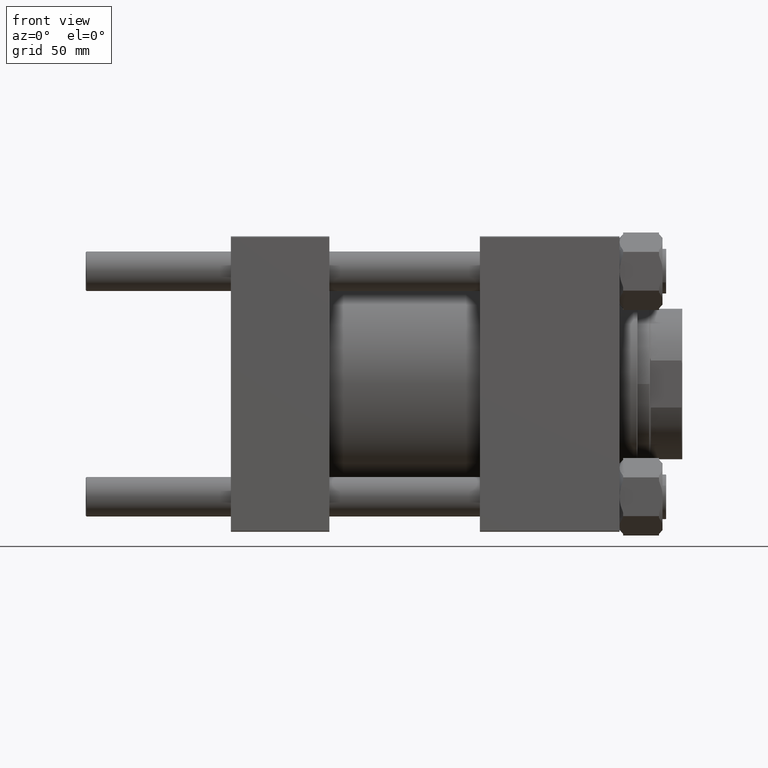
[diagram: clean part render]
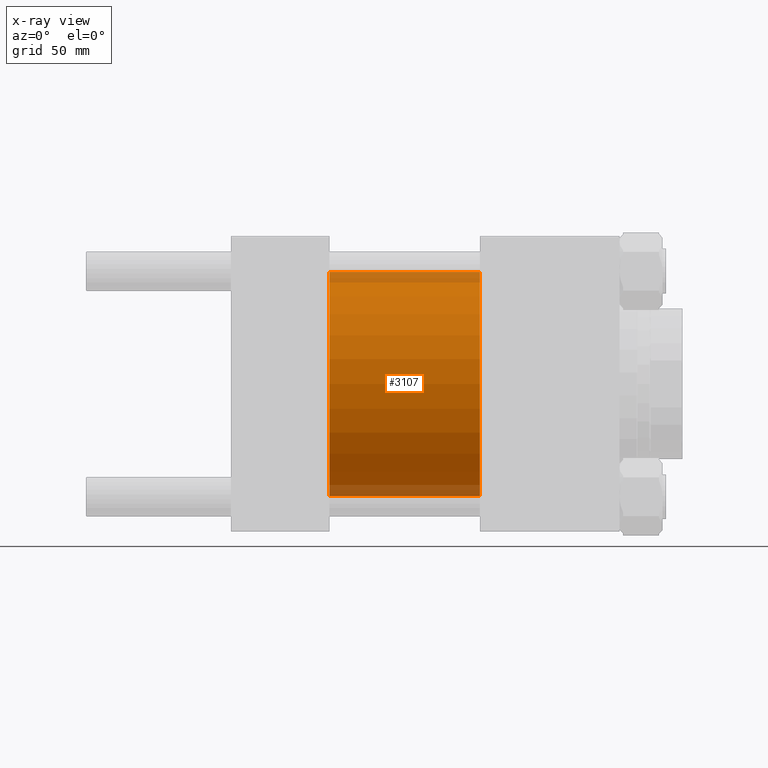
[diagram: x-ray — body ghosted, one internal face saturated and labeled with its STEP entity id]
A machine part, front view, then the same camera in x-ray: the body is ghosted and one INTERNAL B-rep face — a face not visible from any outside direction — is saturated and labeled: STEP entity #3107.
In plain terms, the highlighted cylindrical surface (partial cylindrical patch) has radius 62.5 mm, axis along (-1, -0, -0).
Its self-contained STEP definition (entity closure, byte-faithful):
#3107 = ADVANCED_FACE ( 'NONE', ( #16493 ), #20059, .F. ) ;
#3879 = DIRECTION ( 'NONE',  ( -1.000000000000000000, -0.000000000000000000, -0.000000000000000000 ) ) ;
#3918 = CIRCLE ( 'NONE', #21005, 62.50000000000000000 ) ;
#4283 = ORIENTED_EDGE ( 'NONE', *, *, #28866, .F. ) ;
#5727 = VERTEX_POINT ( 'NONE', #49625 ) ;
#10718 = VERTEX_POINT ( 'NONE', #12510 ) ;
#11118 = DIRECTION ( 'NONE',  ( 1.000000000000000000, 0.000000000000000000, 0.000000000000000000 ) ) ;
#11263 = LINE ( 'NONE', #19396, #41340 ) ;
#12510 = CARTESIAN_POINT ( 'NONE',  ( 55.00000000000000000, 7.654042494670956226E-15, -62.50000000000000000 ) ) ;
#15906 = ORIENTED_EDGE ( 'NONE', *, *, #33330, .F. ) ;
#16493 = FACE_OUTER_BOUND ( 'NONE', #49110, .T. ) ;
#18102 = AXIS2_PLACEMENT_3D ( 'NONE', #48941, #33445, #24129 ) ;
#18919 = DIRECTION ( 'NONE',  ( 1.000000000000000000, 0.000000000000000000, 0.000000000000000000 ) ) ;
#19396 = CARTESIAN_POINT ( 'NONE',  ( 139.0000000000000000, 7.654042494670956226E-15, -62.50000000000000000 ) ) ;
#19400 = CARTESIAN_POINT ( 'NONE',  ( 139.0000000000000000, 0.000000000000000000, 62.50000000000000000 ) ) ;
#19498 = DIRECTION ( 'NONE',  ( 0.000000000000000000, 0.000000000000000000, -1.000000000000000000 ) ) ;
#20059 = CYLINDRICAL_SURFACE ( 'NONE', #18102, 62.50000000000000000 ) ;
#21005 = AXIS2_PLACEMENT_3D ( 'NONE', #25791, #18919, #41791 ) ;
#21401 = EDGE_CURVE ( 'NONE', #5727, #43759, #3918, .T. ) ;
#22587 = EDGE_CURVE ( 'NONE', #43759, #10718, #11263, .T. ) ;
#23402 = ORIENTED_EDGE ( 'NONE', *, *, #21401, .T. ) ;
#24129 = DIRECTION ( 'NONE',  ( 0.000000000000000000, 0.000000000000000000, 1.000000000000000000 ) ) ;
#24932 = ORIENTED_EDGE ( 'NONE', *, *, #22587, .T. ) ;
#25791 = CARTESIAN_POINT ( 'NONE',  ( 139.0000000000000000, 0.000000000000000000, 0.000000000000000000 ) ) ;
#28387 = VECTOR ( 'NONE', #3879, 1000.000000000000000 ) ;
#28866 = EDGE_CURVE ( 'NONE', #48709, #10718, #37275, .T. ) ;
#33330 = EDGE_CURVE ( 'NONE', #5727, #48709, #43038, .T. ) ;
#33445 = DIRECTION ( 'NONE',  ( -1.000000000000000000, -0.000000000000000000, -0.000000000000000000 ) ) ;
#34003 = AXIS2_PLACEMENT_3D ( 'NONE', #34260, #11118, #19498 ) ;
#34260 = CARTESIAN_POINT ( 'NONE',  ( 55.00000000000000000, 0.000000000000000000, 0.000000000000000000 ) ) ;
#34912 = DIRECTION ( 'NONE',  ( -1.000000000000000000, -0.000000000000000000, -0.000000000000000000 ) ) ;
#37275 = CIRCLE ( 'NONE', #34003, 62.50000000000000000 ) ;
#40359 = CARTESIAN_POINT ( 'NONE',  ( 139.0000000000000000, 7.654042494670956226E-15, -62.50000000000000000 ) ) ;
#41340 = VECTOR ( 'NONE', #34912, 1000.000000000000000 ) ;
#41791 = DIRECTION ( 'NONE',  ( 0.000000000000000000, 0.000000000000000000, -1.000000000000000000 ) ) ;
#43038 = LINE ( 'NONE', #19400, #28387 ) ;
#43759 = VERTEX_POINT ( 'NONE', #40359 ) ;
#46190 = CARTESIAN_POINT ( 'NONE',  ( 55.00000000000000000, 0.000000000000000000, 62.50000000000000000 ) ) ;
#48709 = VERTEX_POINT ( 'NONE', #46190 ) ;
#48941 = CARTESIAN_POINT ( 'NONE',  ( 139.0000000000000000, 0.000000000000000000, 0.000000000000000000 ) ) ;
#49110 = EDGE_LOOP ( 'NONE', ( #23402, #24932, #4283, #15906 ) ) ;
#49625 = CARTESIAN_POINT ( 'NONE',  ( 139.0000000000000000, 0.000000000000000000, 62.50000000000000000 ) ) ;